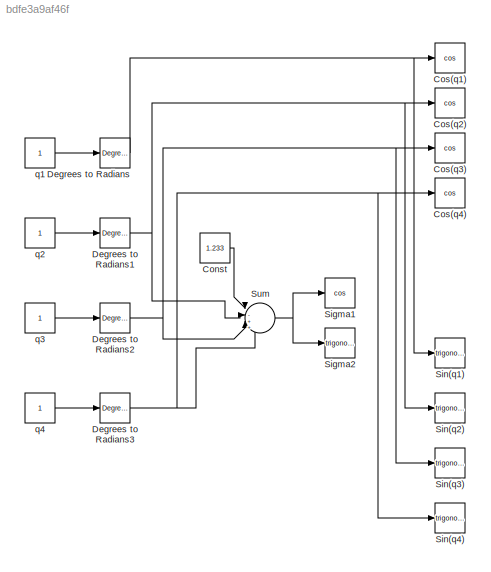
MODEL slx_bdfe3a9af46f
KIND model
CONFIG AbsTol = auto
CONFIG EnableMultiTasking = off
CONFIG FixedStep = auto
CONFIG MaxStep = auto
CONFIG MinStep = auto
CONFIG RelTol = 1e-3
CONFIG SampleTimeConstraint = Unconstrained
CONFIG SolverName = VariableStepAuto
CONFIG StartTime = 0.0
CONFIG StopTime = 10.0
BLOCK [Constant] Const
  Value = 1.233
BLOCK [Trigonometry] Cos(q1)
  Operator = cos
  Ports = [1, 1]
BLOCK [Trigonometry] Cos(q2)
  Operator = cos
  Ports = [1, 1]
BLOCK [Trigonometry] Cos(q3)
  Operator = cos
  Ports = [1, 1]
BLOCK [Trigonometry] Cos(q4)
  Operator = cos
  Ports = [1, 1]
BLOCK [Reference] Degrees to Radians  REF=simulink_extras/Transformations/Degrees to
Radians
  Ports = [1, 1]
  SourceBlock = simulink_extras/Transformations/Degrees to\nRadians
  SourceProductBaseCode = SL
  SourceType = DegreesToRadians
BLOCK [Reference] Degrees to Radians1  REF=simulink_extras/Transformations/Degrees to
Radians
  Ports = [1, 1]
  SourceBlock = simulink_extras/Transformations/Degrees to\nRadians
  SourceProductBaseCode = SL
  SourceType = DegreesToRadians
BLOCK [Reference] Degrees to Radians2  REF=simulink_extras/Transformations/Degrees to
Radians
  Ports = [1, 1]
  SourceBlock = simulink_extras/Transformations/Degrees to\nRadians
  SourceProductBaseCode = SL
  SourceType = DegreesToRadians
BLOCK [Reference] Degrees to Radians3  REF=simulink_extras/Transformations/Degrees to
Radians
  Ports = [1, 1]
  SourceBlock = simulink_extras/Transformations/Degrees to\nRadians
  SourceProductBaseCode = SL
  SourceType = DegreesToRadians
BLOCK [Trigonometry] Sigma1
  Operator = cos
  Ports = [1, 1]
BLOCK [Trigonometry] Sigma2
  Ports = [1, 1]
BLOCK [Trigonometry] Sin(q1)
  Ports = [1, 1]
BLOCK [Trigonometry] Sin(q2)
  Ports = [1, 1]
BLOCK [Trigonometry] Sin(q3)
  Ports = [1, 1]
BLOCK [Trigonometry] Sin(q4)
  Ports = [1, 1]
BLOCK [Sum] Sum
  Inputs = |-+++
  Ports = [4, 1]
BLOCK [Constant] q1
BLOCK [Constant] q2
BLOCK [Constant] q3
BLOCK [Constant] q4
LINE Const:1 -> Sum:1
NET Degrees to Radians1:1 -> Cos(q2):1, Sin(q2):1, Sum:2
NET Degrees to Radians2:1 -> Cos(q3):1, Sin(q3):1, Sum:3
NET Degrees to Radians3:1 -> Cos(q4):1, Sin(q4):1, Sum:4
NET Degrees to Radians:1 -> Cos(q1):1, Sin(q1):1
NET Sum:1 -> Sigma1:1, Sigma2:1
LINE q1:1 -> Degrees to Radians:1
LINE q2:1 -> Degrees to Radians1:1
LINE q3:1 -> Degrees to Radians2:1
LINE q4:1 -> Degrees to Radians3:1
note: NET lines group one-source signal fan-out (src -> all destinations, sorted); 1:1 wires keep LINE
